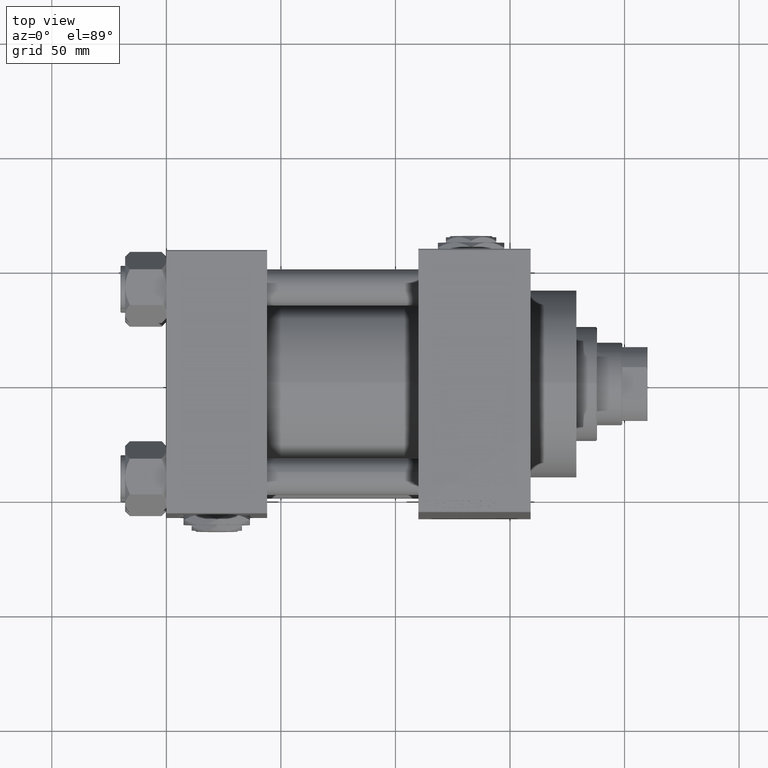
[diagram: clean part render]
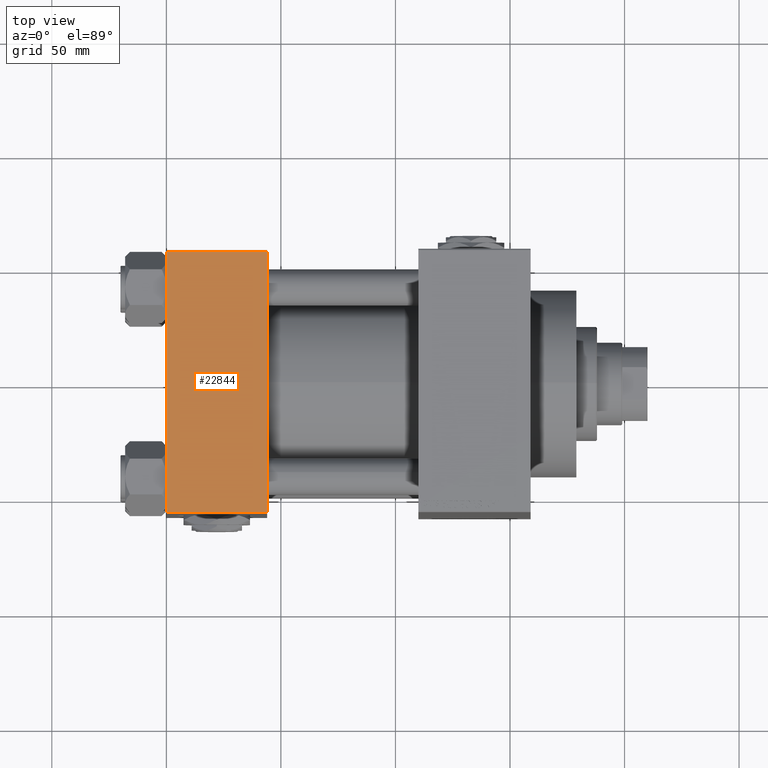
[diagram: same view with one face highlighted and labeled with its STEP entity id]
A machine part, top view. The second image highlights one B-rep face of the part: STEP entity #22844.
In plain terms, the highlighted planar face has unit normal (0, 0, -1).
Its self-contained STEP definition (entity closure, byte-faithful):
#2780 = VECTOR ( 'NONE', #45264, 1000.000000000000000 ) ;
#3303 = DIRECTION ( 'NONE',  ( 0.000000000000000000, -1.000000000000000000, -1.206764157201257045E-16 ) ) ;
#3772 = DIRECTION ( 'NONE',  ( -1.000000000000000000, 0.000000000000000000, 0.000000000000000000 ) ) ;
#4332 = EDGE_CURVE ( 'NONE', #15951, #24645, #22205, .T. ) ;
#6912 = LINE ( 'NONE', #48702, #27206 ) ;
#10722 = LINE ( 'NONE', #18424, #47999 ) ;
#12522 = VERTEX_POINT ( 'NONE', #14138 ) ;
#14138 = CARTESIAN_POINT ( 'NONE',  ( 44.00000000000000000, -57.00000000000003553, 57.49999999999999289 ) ) ;
#15951 = VERTEX_POINT ( 'NONE', #47373 ) ;
#16143 = ORIENTED_EDGE ( 'NONE', *, *, #4332, .T. ) ;
#17606 = ORIENTED_EDGE ( 'NONE', *, *, #46451, .T. ) ;
#17986 = PLANE ( 'NONE',  #29091 ) ;
#18424 = CARTESIAN_POINT ( 'NONE',  ( 0.000000000000000000, 57.00000000000000711, 57.50000000000000711 ) ) ;
#19380 = CARTESIAN_POINT ( 'NONE',  ( 44.00000000000000000, 57.49999999999999289, 57.50000000000000711 ) ) ;
#20085 = EDGE_CURVE ( 'NONE', #23158, #12522, #38300, .T. ) ;
#22205 = LINE ( 'NONE', #33647, #26638 ) ;
#22844 = ADVANCED_FACE ( 'NONE', ( #44381 ), #17986, .F. ) ;
#23158 = VERTEX_POINT ( 'NONE', #24436 ) ;
#24436 = CARTESIAN_POINT ( 'NONE',  ( 44.00000000000000000, 57.00000000000000711, 57.50000000000000711 ) ) ;
#24645 = VERTEX_POINT ( 'NONE', #38466 ) ;
#26638 = VECTOR ( 'NONE', #3303, 1000.000000000000000 ) ;
#27206 = VECTOR ( 'NONE', #40506, 1000.000000000000000 ) ;
#29091 = AXIS2_PLACEMENT_3D ( 'NONE', #49089, #40892, #45352 ) ;
#30350 = EDGE_LOOP ( 'NONE', ( #16143, #48585, #39302, #17606 ) ) ;
#33647 = CARTESIAN_POINT ( 'NONE',  ( 0.000000000000000000, 57.49999999999999289, 57.50000000000000711 ) ) ;
#38300 = LINE ( 'NONE', #19380, #2780 ) ;
#38466 = CARTESIAN_POINT ( 'NONE',  ( 0.000000000000000000, -57.00000000000003553, 57.49999999999999289 ) ) ;
#39302 = ORIENTED_EDGE ( 'NONE', *, *, #20085, .F. ) ;
#39338 = EDGE_CURVE ( 'NONE', #24645, #12522, #6912, .T. ) ;
#40506 = DIRECTION ( 'NONE',  ( 1.000000000000000000, 0.000000000000000000, 0.000000000000000000 ) ) ;
#40892 = DIRECTION ( 'NONE',  ( 0.000000000000000000, 1.206764157201257045E-16, -1.000000000000000000 ) ) ;
#44381 = FACE_OUTER_BOUND ( 'NONE', #30350, .T. ) ;
#45264 = DIRECTION ( 'NONE',  ( 0.000000000000000000, -1.000000000000000000, -1.206764157201257045E-16 ) ) ;
#45352 = DIRECTION ( 'NONE',  ( 0.000000000000000000, 1.000000000000000000, 1.206764157201257045E-16 ) ) ;
#46451 = EDGE_CURVE ( 'NONE', #23158, #15951, #10722, .T. ) ;
#47373 = CARTESIAN_POINT ( 'NONE',  ( 0.000000000000000000, 57.00000000000000711, 57.50000000000000711 ) ) ;
#47999 = VECTOR ( 'NONE', #3772, 1000.000000000000000 ) ;
#48585 = ORIENTED_EDGE ( 'NONE', *, *, #39338, .T. ) ;
#48702 = CARTESIAN_POINT ( 'NONE',  ( 44.00000000000000000, -57.00000000000003553, 57.49999999999999289 ) ) ;
#49089 = CARTESIAN_POINT ( 'NONE',  ( 44.00000000000000000, 57.49999999999999289, 57.50000000000000711 ) ) ;